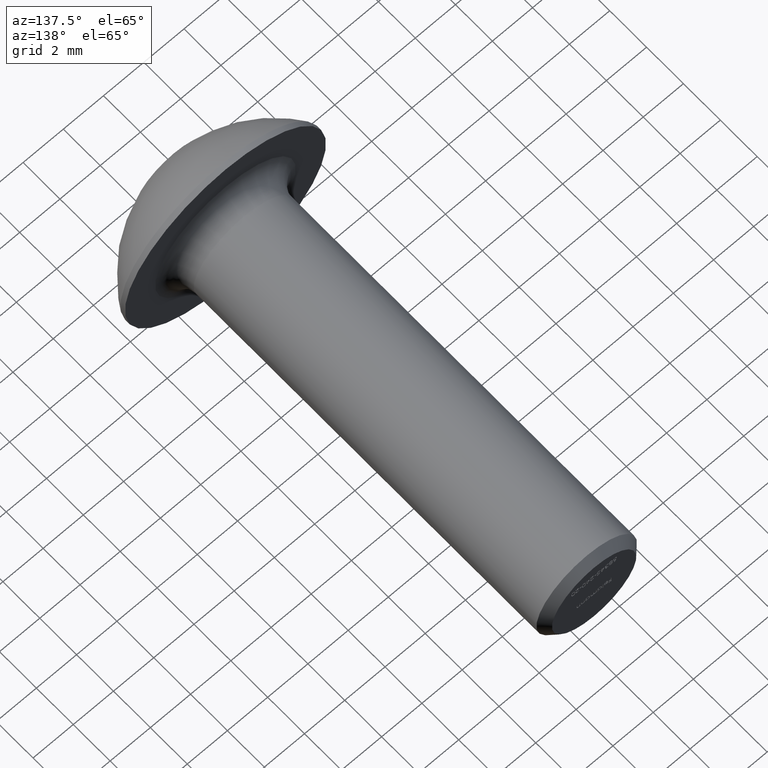
[diagram: clean part render]
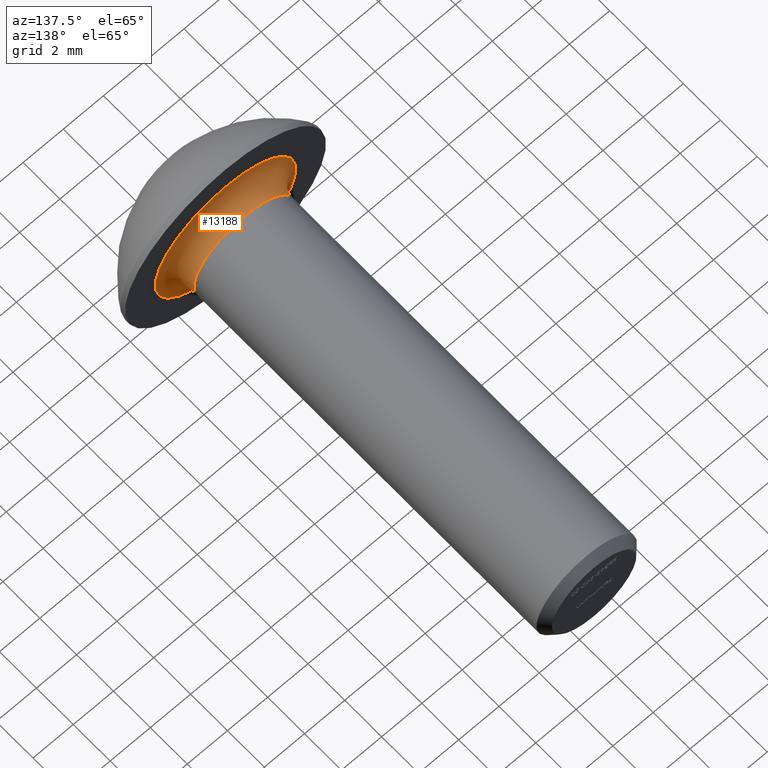
[diagram: same view with one face highlighted and labeled with its STEP entity id]
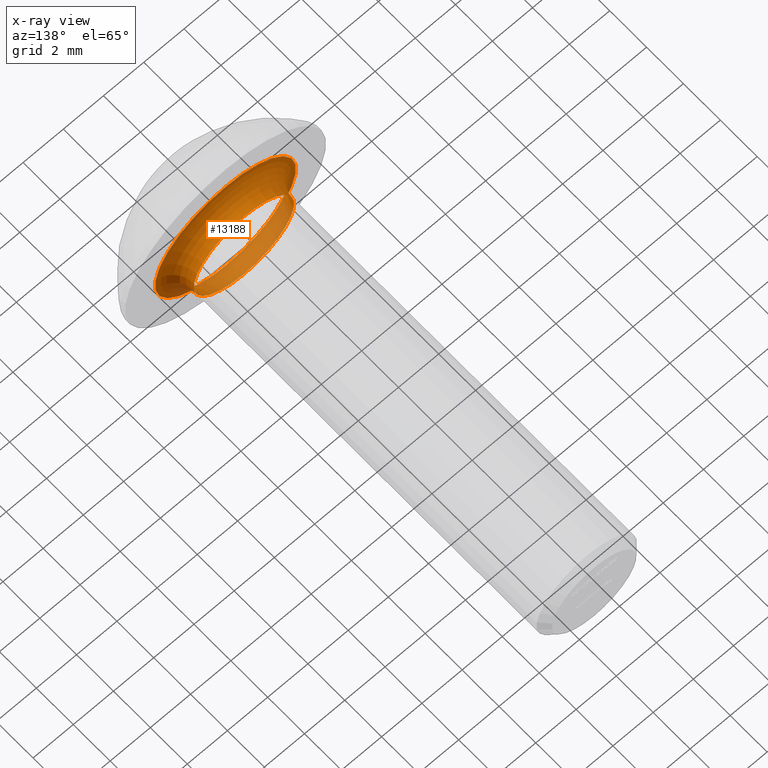
[diagram: x-ray of the same camera — body ghosted, the highlighted face saturated]
A machine part, auxiliary view. The second image highlights one B-rep face of the part: STEP entity #13188.
The next image is the same camera in x-ray: the body ghosted, the highlighted face saturated — about 24% of this face is hidden behind the body in this view.
In plain terms, the highlighted toroidal blend (fillet) surface has major radius 3.5 mm and minor (blend) radius 1 mm.
Its self-contained STEP definition (entity closure, byte-faithful):
#782 = FACE_OUTER_BOUND ( 'NONE', #12409, .T. ) ;
#1492 = AXIS2_PLACEMENT_3D ( 'NONE', #5221, #7769, #12537 ) ;
#1573 = DIRECTION ( 'NONE',  ( 0.0000000000000000000, 0.0000000000000000000, -1.000000000000000000 ) ) ;
#1730 = CIRCLE ( 'NONE', #1492, 2.499999999999996900 ) ;
#1843 = DIRECTION ( 'NONE',  ( -0.0000000000000000000, -1.000000000000000000, -0.0000000000000000000 ) ) ;
#2800 = CARTESIAN_POINT ( 'NONE',  ( 0.0000000000000000000, 2.800000000000000300, 0.0000000000000000000 ) ) ;
#3509 = EDGE_CURVE ( 'NONE', #12714, #12714, #1730, .T. ) ;
#4501 = EDGE_CURVE ( 'NONE', #9017, #9017, #7941, .T. ) ;
#4814 = AXIS2_PLACEMENT_3D ( 'NONE', #2800, #12660, #1573 ) ;
#5221 = CARTESIAN_POINT ( 'NONE',  ( 0.0000000000000000000, 3.800000000000000300, 0.0000000000000000000 ) ) ;
#5576 = EDGE_LOOP ( 'NONE', ( #9486 ) ) ;
#7428 = CARTESIAN_POINT ( 'NONE',  ( 0.0000000000000000000, 3.800000000000000300, -2.499999999999996900 ) ) ;
#7769 = DIRECTION ( 'NONE',  ( 0.0000000000000000000, 1.000000000000000000, 0.0000000000000000000 ) ) ;
#7941 = CIRCLE ( 'NONE', #4814, 3.499999999999996900 ) ;
#8499 = FACE_OUTER_BOUND ( 'NONE', #5576, .T. ) ;
#9017 = VERTEX_POINT ( 'NONE', #14686 ) ;
#9486 = ORIENTED_EDGE ( 'NONE', *, *, #4501, .F. ) ;
#12409 = EDGE_LOOP ( 'NONE', ( #13600 ) ) ;
#12537 = DIRECTION ( 'NONE',  ( 0.0000000000000000000, 0.0000000000000000000, -1.000000000000000000 ) ) ;
#12660 = DIRECTION ( 'NONE',  ( -0.0000000000000000000, -1.000000000000000000, -0.0000000000000000000 ) ) ;
#12714 = VERTEX_POINT ( 'NONE', #7428 ) ;
#12756 = TOROIDAL_SURFACE ( 'NONE', #15753, 3.499999999999996900, 1.000000000000000000 ) ;
#13188 = ADVANCED_FACE ( 'NONE', ( #782, #8499 ), #12756, .F. ) ;
#13226 = CARTESIAN_POINT ( 'NONE',  ( 0.0000000000000000000, 3.800000000000000300, 0.0000000000000000000 ) ) ;
#13600 = ORIENTED_EDGE ( 'NONE', *, *, #3509, .F. ) ;
#14302 = DIRECTION ( 'NONE',  ( 0.0000000000000000000, 0.0000000000000000000, -1.000000000000000000 ) ) ;
#14686 = CARTESIAN_POINT ( 'NONE',  ( 0.0000000000000000000, 2.800000000000000300, -3.499999999999996900 ) ) ;
#15753 = AXIS2_PLACEMENT_3D ( 'NONE', #13226, #1843, #14302 ) ;